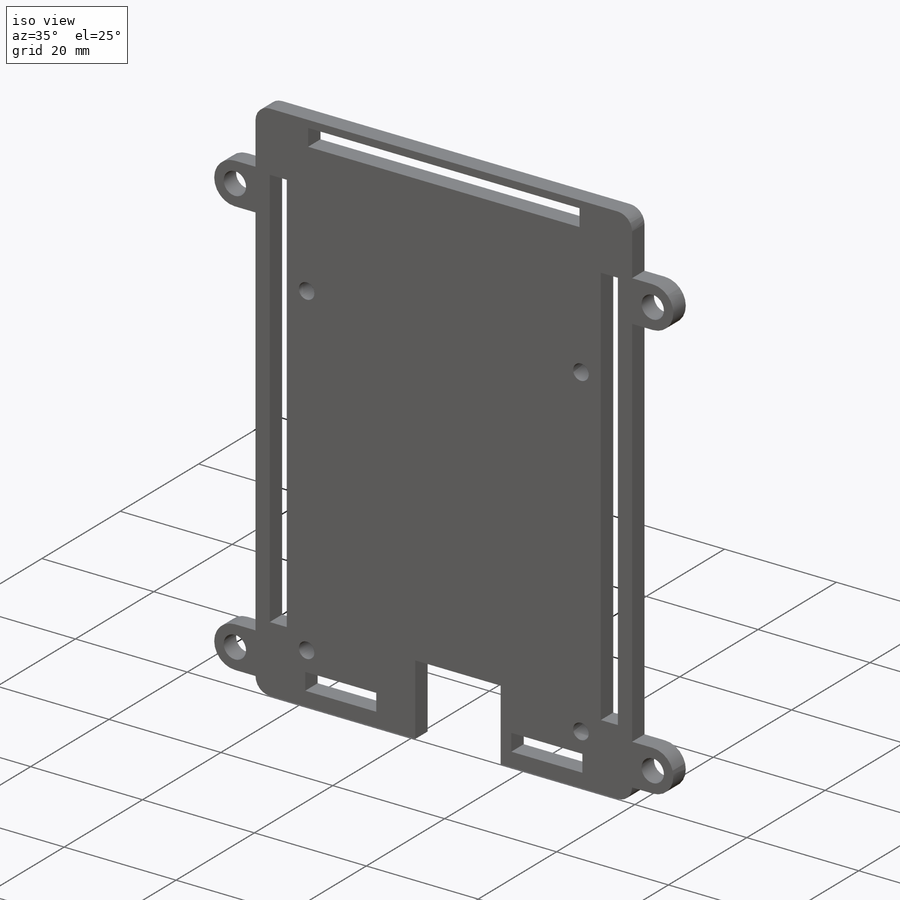
[diagram: iso view]
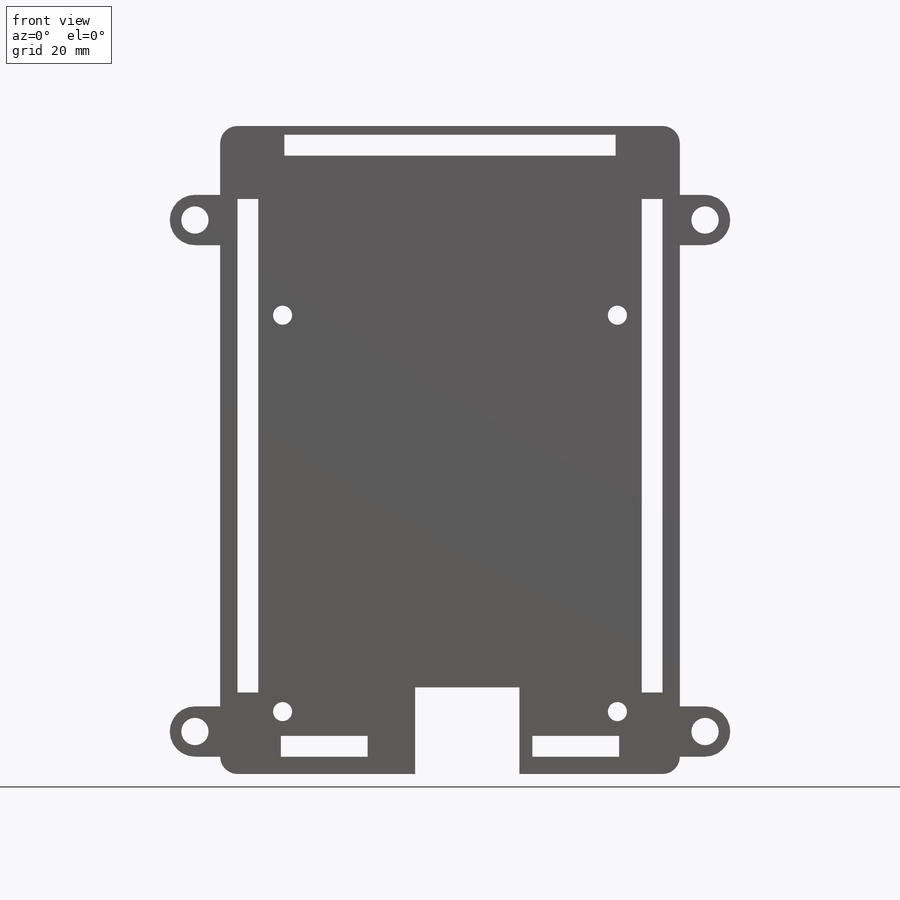
[diagram: front view]
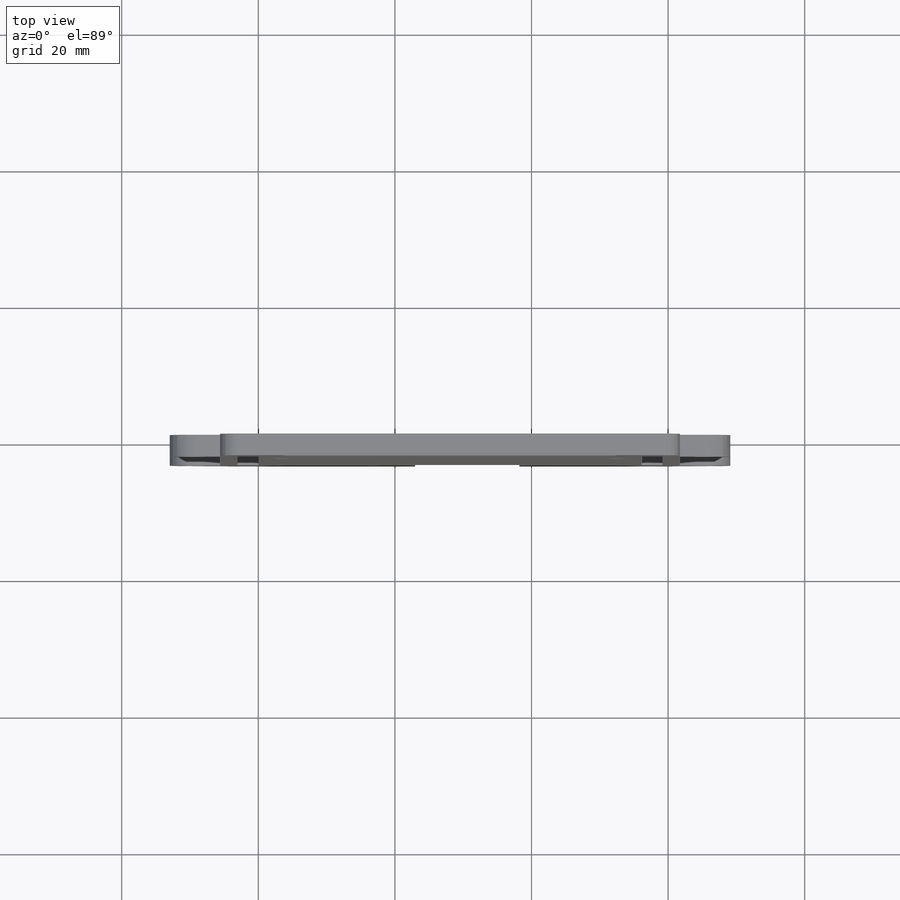
[diagram: top view]
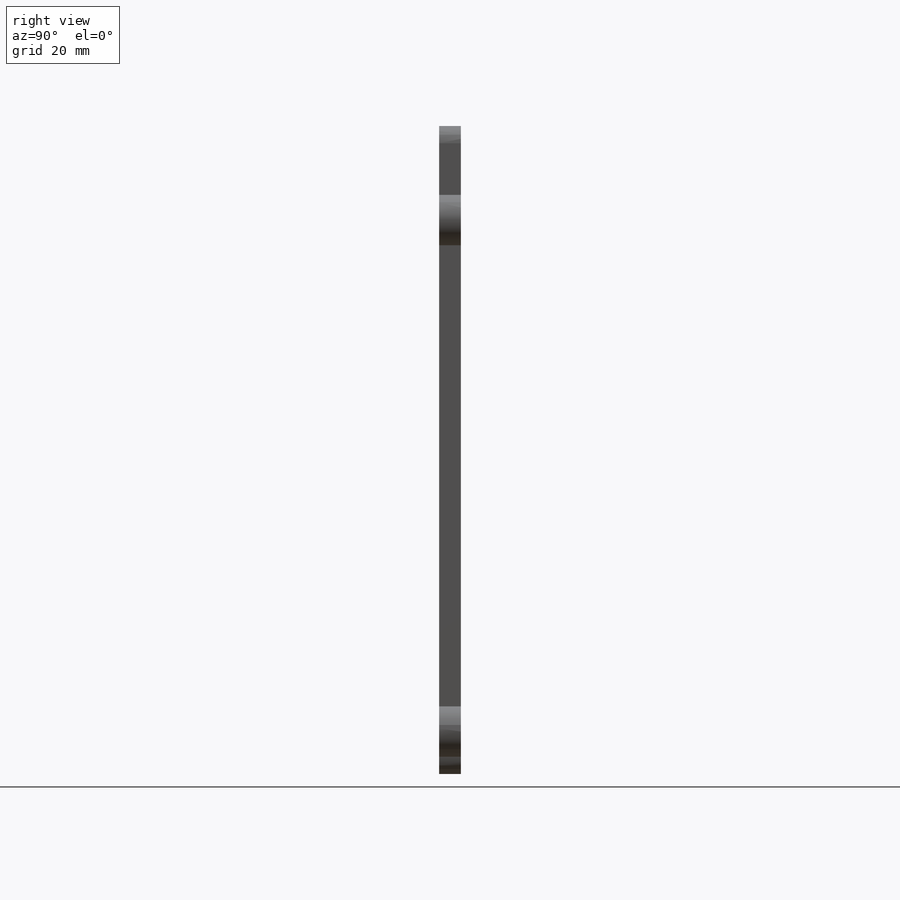
[diagram: right view]
SOLIDWORKS PART (.sldprt)
format: sldprt  version: not decoded by parser v0  size: 657,408 bytes
history: native  units: mm
features: sketch x7, extrude x3, cut_extrude x3, material x1 (+11 scaffold rows collapsed)
feature tree (25):
  scaffold x11  (default folders/planes/origin — collapsed)
  material  "Material <not specified>"
  sketch  "Sketch1"  dims[c1.D12=2.794mm c1.D17=2.54mm c1.D1=20.32mm c1.D2=20.8661mm c1.D3=15.2654mm c1.D4=8.255mm c1.D5=14.224mm c1.D6=5.334mm c1.D7=3.175mm c1.D8=4.953mm c1.D9=8.3312mm c1.D10=6.4262mm c1.D11=6.35mm c2.D12=3.429mm c2.D13=15.875mm c2.D14=23.876mm c2.D15=3.175mm c2.D16=2.54mm c2.D18=3.556mm c2.D19=3.81mm c2.D20=3.81mm c3.D13=20.8661mm c3.D21=15.875mm c3.D16=1.8034mm c3.D18=3.556mm c4.D13=23.495mm c4.D5=19.4818mm c4.D22=16.7894mm]
  extrude  "Boss-Extrude1"  Depth=3.175mm
  sketch  "Sketch2"  dims[D1=9.4742mm D2=8.001mm]
  extrude  "Boss-Extrude2"  [1 undecoded]
  sketch  "Sketch3"  dims[D1=2.2098mm D2=2.2098mm]
  cut_extrude  "Cut-Extrude1"  [1 undecoded]
  sketch  "Sketch4"
  sketch  "Sketch6"
  cut_extrude  "Cut-Extrude2"  [1 undecoded]
  sketch  "Sketch7"  dims[D1=3.048mm D2=3.175mm D3=2.54mm D4=1.0mm]
  cut_extrude  "Cut-Extrude3"  [1 undecoded]
  sketch  "Sketch5"  dims[c1.D1=~5.093933mm c1.D2=~5.093933mm c1.D3=4.064mm c1.D4=10.16mm c2.D3=4.0mm c2.D1=70.6882mm c2.D2=70.8914mm]
  extrude  "Boss-Extrude3"  [1 undecoded]
decode coverage: 6 of 13 modeling features carry decoded parameters
note: ~ marks probable driven/reference dimensions
note: 5 parameter values undecoded
summary: no parameter record found for 5 features
note: suppression state not decoded; provenance and decode notes live in map.json
